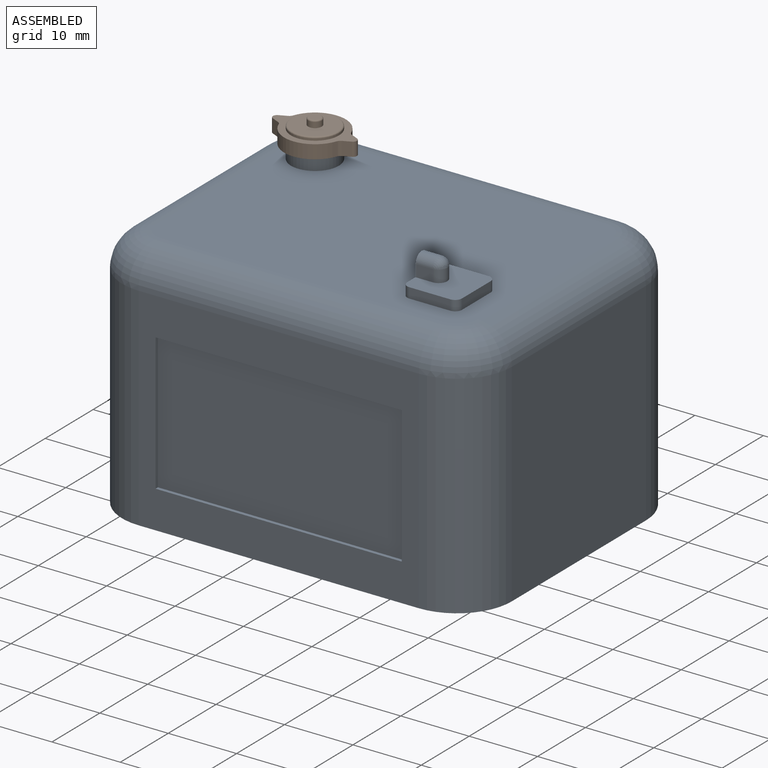
[diagram: assembled view]
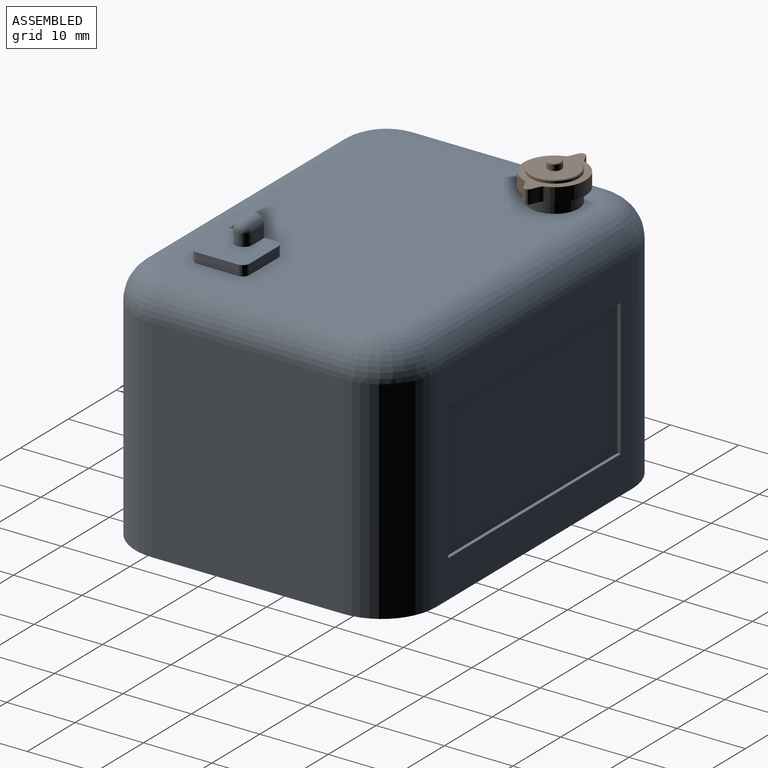
[diagram: assembled view, second angle]
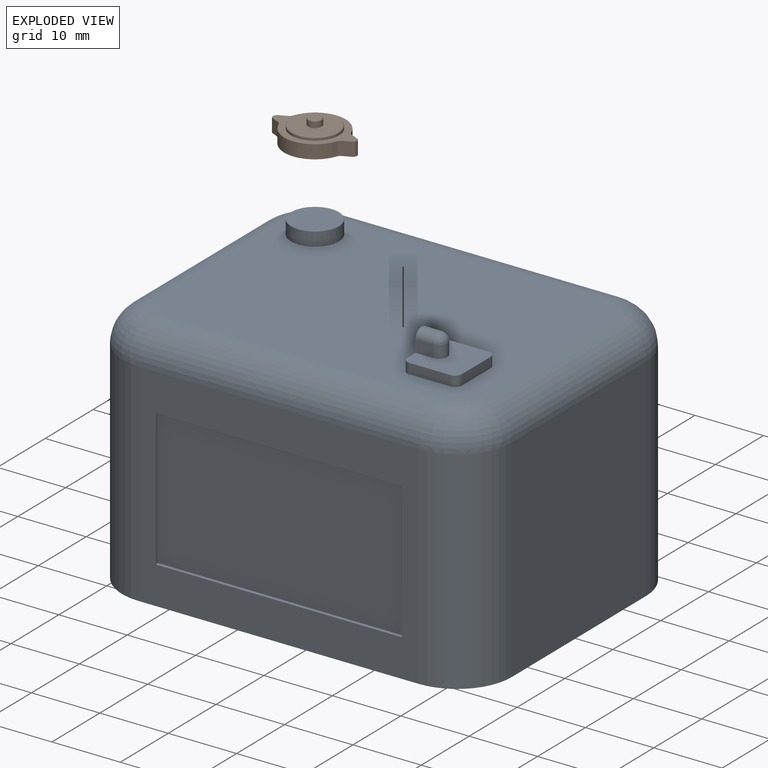
[diagram: exploded view]
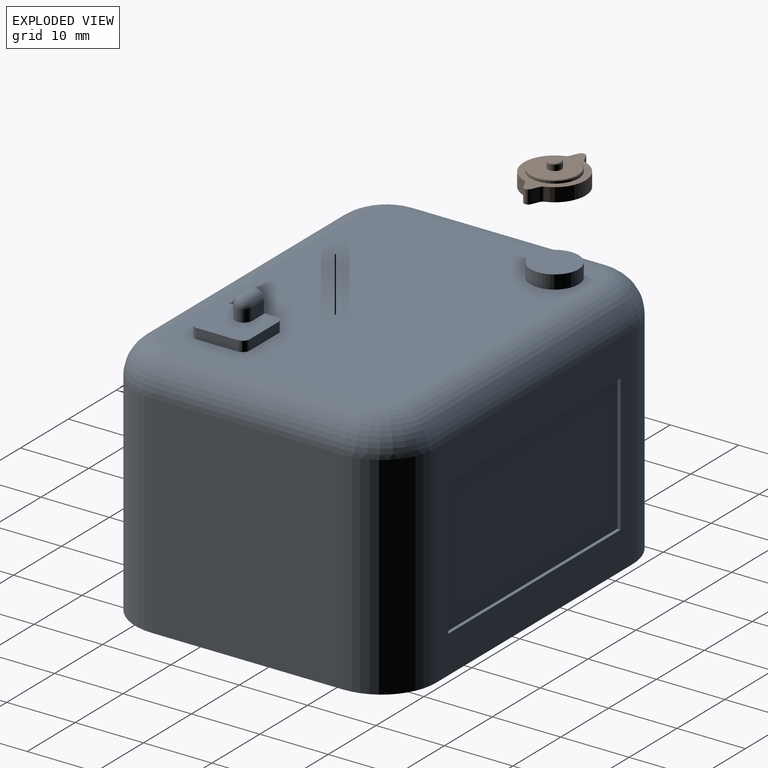
[diagram: exploded view, second angle]
ASSEMBLY  parts=2 mates=2
PART A: 48 faces, bbox 57x44x40.5 mm
  f0: plane 1.62x1.31mm, normal (0,0,1), area 1.8mm2, adj f42,f45,f46
  f1: plane 47x34mm, normal (0,0,1), area 1488.6mm2, adj f7,f8,f9,f10,f12,f14,f16,f18
  f2: plane 31x28mm, normal (-1,0,0), area 868mm2, adj f6,f7,f15,f17
  f3: plane 41x31mm, normal (0,-1,0), area 551mm2, adj f6,f8,f13,f15,f19,f20,f21,f22
  f4: plane 31x28mm, normal (1,0,0), area 868mm2, adj f6,f10,f11,f13
  f5: plane 41x31mm, normal (0,1,0), area 551mm2, adj f6,f9,f11,f17,f24,f25,f26,f27
  f6: plane 57x44mm, normal (0,0,-1), area 2453.1mm2, adj f2,f3,f4,f5,f11,f13,f15,f17
  f7: cylinder r=5mm len=28mm, axis (0,1,0), area 219.9mm2, adj f1,f2,f16,f18
  f8: cylinder r=5mm len=41mm, axis (-1,0,0), area 322mm2, adj f1,f3,f14,f16
  f9: cylinder r=5mm len=41mm, axis (1,0,0), area 322mm2, adj f1,f5,f12,f18
  f10: cylinder r=5mm len=28mm, axis (0,-1,0), area 219.9mm2, adj f1,f4,f12,f14
  f11: cylinder r=8mm len=31mm, axis (0,0,1), area 389.6mm2, adj f4,f5,f6,f12
  f12: torus R=3mm, axis (0,0,1), area 76.3mm2, adj f1,f9,f10,f11
  f13: cylinder r=8mm len=31mm, axis (0,0,-1), area 389.6mm2, adj f3,f4,f6,f14
  f14: torus R=3mm, axis (0,0,1), area 76.3mm2, adj f1,f8,f10,f13
  f15: cylinder r=8mm len=31mm, axis (0,0,1), area 389.6mm2, adj f2,f3,f6,f16
  f16: torus R=3mm, axis (0,0,1), area 76.3mm2, adj f1,f7,f8,f15
  f17: cylinder r=8mm len=31mm, axis (0,0,-1), area 389.6mm2, adj f2,f5,f6,f18
  f18: torus R=3mm, axis (0,0,1), area 76.3mm2, adj f1,f7,f9,f17
  f19: plane 20x0.5mm, normal (1,0,0), area 10mm2, adj f3,f20,f22,f23
  f20: plane 36x0.5mm, normal (0,0,1), area 18mm2, adj f3,f19,f21,f23
  f21: plane 20x0.5mm, normal (-1,0,0), area 10mm2, adj f3,f20,f22,f23
  f22: plane 36x0.5mm, normal (0,0,-1), area 18mm2, adj f3,f19,f21,f23
  f23: plane 36x20mm, normal (0,-1,0), area 720mm2, adj f19,f20,f21,f22
  f24: plane 20x0.5mm, normal (-1,0,0), area 10mm2, adj f5,f25,f27,f28
  f25: plane 36x0.5mm, normal (0,0,1), area 18mm2, adj f5,f24,f26,f28
  f26: plane 20x0.5mm, normal (1,0,0), area 10mm2, adj f5,f25,f27,f28
  f27: plane 36x0.5mm, normal (0,0,-1), area 18mm2, adj f5,f24,f26,f28
  f28: plane 36x20mm, normal (0,1,0), area 720mm2, adj f24,f25,f26,f27
  f29: cylinder r=3.5mm len=7mm, axis (0,0,-1), area 44mm2, adj f1,f30
  f30: plane 7x7mm, normal (0,0,1), area 38.5mm2, adj f29
  f31: plane 6x1.5mm, normal (1,0,0), area 9mm2, adj f1,f35,f36,f39
  f32: plane 6x1.5mm, normal (0,1,0), area 9mm2, adj f1,f35,f36,f37
  f33: plane 6x4.5mm, normal (-1,0,0), area 13.8mm2, adj f1,f35,f37,f38,f40,f41,f42,f43
  f34: plane 6x1.5mm, normal (0,-1,0), area 9mm2, adj f1,f35,f38,f39
  f35: plane 8x8mm, normal (0,0,1), area 54.4mm2, adj f31,f32,f33,f34,f36,f37,f38,f39
  f36: cylinder r=1mm len=1.5mm, axis (0,0,-1), area 2.4mm2, adj f1,f31,f32,f35
  f37: cylinder r=1mm len=1.5mm, axis (0,0,1), area 2.4mm2, adj f1,f32,f33,f35
  f38: cylinder r=1mm len=1.5mm, axis (0,0,-1), area 2.4mm2, adj f1,f33,f34,f35
  f39: cylinder r=1mm len=1.5mm, axis (0,0,1), area 2.4mm2, adj f1,f31,f34,f35
  f40: plane 2.5x1.75mm, normal (0,-1,0), area 4.4mm2, adj f33,f35,f43,f44
  f41: plane 2.5x1.75mm, normal (0,1,0), area 4.4mm2, adj f33,f35,f43,f44
  f42: cylinder r=0.8mm len=2.5mm, axis (-1,0,0), area 11.3mm2, adj f0,f33,f45,f46
  f43: cylinder r=1.25mm len=2.5mm, axis (-1,0,0), area 9.8mm2, adj f33,f40,f41,f47
  f44: cylinder r=1.25mm len=2.5mm, axis (0,0,-1), area 6.9mm2, adj f35,f40,f41,f47
  f45: plane 1.6x0.8mm, normal (-1,0,0), area 1mm2, adj f0,f42
  f46: sphere r=0.81mm, area 2.1mm2, adj f0,f42
  f47: sphere r=1.25mm, area 4.9mm2, adj f43,f44
PART B: 22 faces, bbox 12.3x9x3.5 mm
  f0: cylinder r=4.5mm len=8.48mm, axis (0,0,-1), area 22.1mm2, adj f2,f3,f18,f21
  f1: cylinder r=4.5mm len=8.48mm, axis (0,0,-1), area 22.1mm2, adj f2,f3,f19,f20
  f2: plane 12.28x9mm, normal (0,0,1), area 30.3mm2, adj f0,f1,f4,f12,f13,f14,f15,f16
  f3: plane 12.28x9mm, normal (0,0,-1), area 29.2mm2, adj f0,f1,f10,f12,f13,f14,f15,f16
  f4: cylinder r=3.5mm len=7mm, axis (0,0,-1), area 6.6mm2, adj f2,f9
  f5: plane 6.6x6.6mm, normal (0,0,1), area 31.1mm2, adj f6,f9
  f6: cylinder r=1mm len=2mm, axis (0,0,-1), area 5mm2, adj f5,f8
  f7: plane 1.6x1.6mm, normal (0,0,1), area 2mm2, adj f8
  f8: torus R=0.8mm, axis (0,0,1), area 1.8mm2, adj f6,f7
  f9: torus R=3.3mm, axis (0,0,1), area 6.8mm2, adj f4,f5
  f10: cylinder r=3.55mm len=7.1mm, axis (0,0,-1), area 22.3mm2, adj f3,f11
  f11: plane 7.1x7.1mm, normal (0,0,-1), area 39.6mm2, adj f10
  f12: plane 2x1.12mm, normal (0.41,0.91,0), area 2.5mm2, adj f2,f3,f13,f18
  f13: cylinder r=0.6mm len=2mm, axis (0,0,-1), area 2.8mm2, adj f2,f3,f12,f14
  f14: plane 2x1.12mm, normal (0.41,-0.91,0), area 2.5mm2, adj f2,f3,f13,f19
  f15: plane 2x1.12mm, normal (-0.41,0.91,0), area 2.5mm2, adj f2,f3,f17,f21
  f16: plane 2x1.12mm, normal (-0.41,-0.91,0), area 2.5mm2, adj f2,f3,f17,f20
  f17: cylinder r=0.6mm len=2mm, axis (0,0,-1), area 2.8mm2, adj f2,f3,f15,f16
  f18: cylinder r=0.8mm len=2mm, axis (0,0,-1), area 1.3mm2, adj f0,f2,f3,f12
  f19: cylinder r=0.8mm len=2mm, axis (0,0,-1), area 1.3mm2, adj f1,f2,f3,f14
  f20: cylinder r=0.8mm len=2mm, axis (0,0,-1), area 1.3mm2, adj f1,f2,f3,f16
  f21: cylinder r=0.8mm len=2mm, axis (0,0,-1), area 1.3mm2, adj f0,f2,f3,f15
PLACE A rot(axis=(-0.02,-1,0.04),0deg) t=(-30.89,-13.51,0.8)mm
PLACE B rot(axis=(-0.02,-1,0.04),0deg) t=(-20.89,20.49,38.8)mm
MATE cylindrical A.f29 <-> B.f0  axis (0,0,1) through (-20.89,20.49,36.8)mm
MATE slider B.f0 <-> B.f0  axis (0,0,-1) through (-20.89,20.49,39.8)mm
